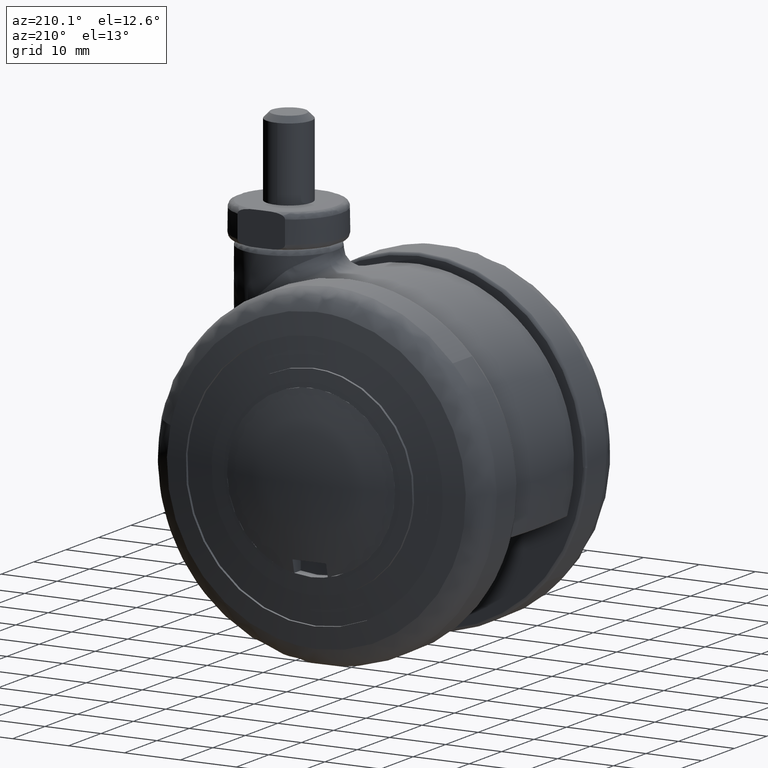
[diagram: clean part render]
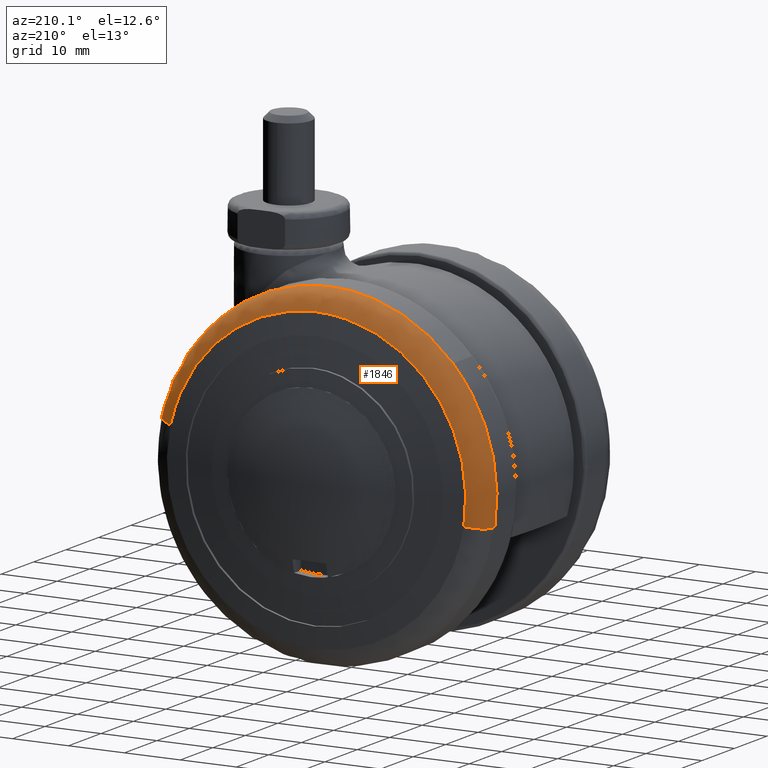
[diagram: same view with one face highlighted and labeled with its STEP entity id]
A machine part, auxiliary view. The second image highlights one B-rep face of the part: STEP entity #1846.
In plain terms, the highlighted face is a freeform B-spline surface patch.
Its self-contained STEP definition (entity closure, byte-faithful):
#802=CARTESIAN_POINT('',(29.273079754005469,16.918165000346921,6.564053756302946));
#803=VERTEX_POINT('',#802);
#821=CARTESIAN_POINT('',(0.0,16.918165000004851,30.000000000000011));
#822=VERTEX_POINT('',#821);
#823=CARTESIAN_POINT('',(0.0,16.918165000004851,30.000000000000011));
#824=CARTESIAN_POINT('',(24.017916571073211,16.918165000004851,30.000000000000004));
#825=CARTESIAN_POINT('',(29.273079754005469,16.918165000346914,6.564053756302946));
#833=(BOUNDED_CURVE()B_SPLINE_CURVE(2,(#823,#824,#825),.UNSPECIFIED.,.F.,.U.)B_SPLINE_CURVE_WITH_KNOTS((3,3),(0.0,0.212563823276733),.UNSPECIFIED.)CURVE()GEOMETRIC_REPRESENTATION_ITEM()RATIONAL_B_SPLINE_CURVE((1.0,0.750965990388735,0.925416950448711))REPRESENTATION_ITEM(''));
#834=EDGE_CURVE('',#822,#803,#833,.T.);
#836=CARTESIAN_POINT('',(-22.118321371718419,16.918165000004819,20.267704845329199));
#837=VERTEX_POINT('',#836);
#838=CARTESIAN_POINT('',(-22.118321371718459,16.918165000004848,20.267704845329252));
#839=CARTESIAN_POINT('',(-13.200317046367177,16.918165000004844,30.0));
#840=CARTESIAN_POINT('',(0.0,16.918165000004851,30.000000000000011));
#848=(BOUNDED_CURVE()B_SPLINE_CURVE(2,(#838,#839,#840),.UNSPECIFIED.,.F.,.U.)B_SPLINE_CURVE_WITH_KNOTS((3,3),(0.868415199643972,1.0),.UNSPECIFIED.)CURVE()GEOMETRIC_REPRESENTATION_ITEM()RATIONAL_B_SPLINE_CURVE((0.853959782003176,0.845838817107189,1.0))REPRESENTATION_ITEM(''));
#849=EDGE_CURVE('',#837,#822,#848,.T.);
#993=CARTESIAN_POINT('',(-29.600578326231581,16.918165000345059,-4.879114955873533));
#994=VERTEX_POINT('',#993);
#995=CARTESIAN_POINT('',(-29.600578326231574,16.918165000345066,-4.879114955873533));
#996=CARTESIAN_POINT('',(-29.999999999999996,16.918165000004851,-2.455906516138719));
#997=CARTESIAN_POINT('',(-30.0,16.918165000004851,6.215428E-015));
#998=CARTESIAN_POINT('',(-30.000000000000007,16.918165000004848,11.666360875732664));
#999=CARTESIAN_POINT('',(-22.118321371718459,16.918165000004848,20.267704845329252));
#1007=(BOUNDED_CURVE()B_SPLINE_CURVE(2,(#995,#996,#997,#998,#999),.UNSPECIFIED.,.F.,.U.)B_SPLINE_CURVE_WITH_KNOTS((3,2,3),(0.722006108799185,0.750000000000000,0.868415199643972),.UNSPECIFIED.)CURVE()GEOMETRIC_REPRESENTATION_ITEM()RATIONAL_B_SPLINE_CURVE((0.941751131923255,0.967203116396318,1.0,0.861267964079358,0.853959782003176))REPRESENTATION_ITEM(''));
#1008=EDGE_CURVE('',#994,#837,#1007,.T.);
#1758=CARTESIAN_POINT('',(25.820638296203537,20.891415125268129,5.789894989584138));
#1759=CARTESIAN_POINT('',(20.352931046125480,20.891415125268121,30.173703585037668));
#1760=CARTESIAN_POINT('',(-4.303676399584784,20.891415125268121,26.109511972869988));
#1761=CARTESIAN_POINT('',(-30.413188372454762,20.891415125268121,21.805835573285204));
#1762=CARTESIAN_POINT('',(-26.109511972869988,20.891415125268132,-4.303676399584751));
#1763=CARTESIAN_POINT('',(29.499359611795217,20.453205016049345,6.614793656645838));
#1764=CARTESIAN_POINT('',(23.252656467907894,20.453205016049345,34.472615380914696));
#1765=CARTESIAN_POINT('',(-4.916830339659505,20.453205016049353,29.829389736248729));
#1766=CARTESIAN_POINT('',(-34.746220075908234,20.453205016049342,24.912559396589238));
#1767=CARTESIAN_POINT('',(-29.829389736248729,20.453205016049353,-4.916830339659467));
#1768=CARTESIAN_POINT('',(29.265275459664991,16.665339410077557,6.562303759068089));
#1769=CARTESIAN_POINT('',(23.068141331115260,16.665339410077554,34.199067309046512));
#1770=CARTESIAN_POINT('',(-4.877814168584143,16.665339410077546,29.592686719747309));
#1771=CARTESIAN_POINT('',(-34.470500888331458,16.665339410077536,24.714872551163161));
#1772=CARTESIAN_POINT('',(-29.592686719747309,16.665339410077557,-4.877814168584108));
#1780=(BOUNDED_SURFACE()B_SPLINE_SURFACE(2,2,((#1758,#1763,#1768),(#1759,#1764,#1769),(#1760,#1765,#1770),(#1761,#1766,#1771),(#1762,#1767,#1772)),.UNSPECIFIED.,.F.,.F.,.U.)B_SPLINE_SURFACE_WITH_KNOTS((3,2,3),(3,3),(0.0,47.704680777101792,97.397056586582806),(0.0,6.382859761475611),.UNSPECIFIED.)GEOMETRIC_REPRESENTATION_ITEM()RATIONAL_B_SPLINE_SURFACE(((0.896685774421636,0.650859408926916,0.897771728868873),(0.659390377501734,0.478618534602815,0.660188949234820),(0.917320156762497,0.665836876259446,0.918431101010965),(0.648643303365869,0.470817770367122,0.649428859577481),(0.917320156762497,0.665836876259446,0.918431101010965)))REPRESENTATION_ITEM('')SURFACE());
#1781=ORIENTED_EDGE('',*,*,#834,.T.);
#1782=CARTESIAN_POINT('',(26.065071559120351,20.854227348020441,5.844705521983595));
#1783=VERTEX_POINT('',#1782);
#1784=CARTESIAN_POINT('',(26.065071559120341,20.854227348020437,5.844705521983596));
#1785=CARTESIAN_POINT('',(29.273079753451533,20.259240790822744,6.564053756143051));
#1786=CARTESIAN_POINT('',(29.273079754005476,16.918165000346917,6.564053756302946));
#1794=(BOUNDED_CURVE()B_SPLINE_CURVE(2,(#1784,#1785,#1786),.UNSPECIFIED.,.F.,.U.)B_SPLINE_CURVE_WITH_KNOTS((3,3),(-1.705714506235509,-0.290855615064164),.UNSPECIFIED.)CURVE()GEOMETRIC_REPRESENTATION_ITEM()RATIONAL_B_SPLINE_CURVE((0.875374423729128,0.672220056541175,0.876361784525512))REPRESENTATION_ITEM(''));
#1795=EDGE_CURVE('',#1783,#803,#1794,.T.);
#1796=ORIENTED_EDGE('',*,*,#1795,.F.);
#1797=CARTESIAN_POINT('',(0.0,20.854227333449700,26.712329319606411));
#1798=VERTEX_POINT('',#1797);
#1799=CARTESIAN_POINT('',(0.0,20.854227333449700,26.712329319606411));
#1800=CARTESIAN_POINT('',(21.385816566820569,20.854227333449693,26.712329319606411));
#1801=CARTESIAN_POINT('',(26.065071559120348,20.854227348020441,5.844705521983596));
#1809=(BOUNDED_CURVE()B_SPLINE_CURVE(2,(#1799,#1800,#1801),.UNSPECIFIED.,.F.,.U.)B_SPLINE_CURVE_WITH_KNOTS((3,3),(0.0,0.212563823273568),.UNSPECIFIED.)CURVE()GEOMETRIC_REPRESENTATION_ITEM()RATIONAL_B_SPLINE_CURVE((1.0,0.750965990392444,0.925416950443516))REPRESENTATION_ITEM(''));
#1810=EDGE_CURVE('',#1798,#1783,#1809,.T.);
#1811=ORIENTED_EDGE('',*,*,#1810,.F.);
#1812=CARTESIAN_POINT('',(-26.356679879683540,20.854227348631529,-4.344417516797684));
#1813=VERTEX_POINT('',#1812);
#1814=CARTESIAN_POINT('',(-26.356679879683547,20.854227348631522,-4.344417516797684));
#1815=CARTESIAN_POINT('',(-26.712329319606397,20.854227333449703,-2.186766121231665));
#1816=CARTESIAN_POINT('',(-26.712329319606400,20.854227333449700,7.661466E-015));
#1817=CARTESIAN_POINT('',(-26.712329319606397,20.854227333449693,26.712329319606397));
#1818=CARTESIAN_POINT('',(0.0,20.854227333449700,26.712329319606411));
#1826=(BOUNDED_CURVE()B_SPLINE_CURVE(2,(#1814,#1815,#1816,#1817,#1818),.UNSPECIFIED.,.F.,.U.)B_SPLINE_CURVE_WITH_KNOTS((3,2,3),(0.722006108799314,0.750000000000000,1.0),.UNSPECIFIED.)CURVE()GEOMETRIC_REPRESENTATION_ITEM()RATIONAL_B_SPLINE_CURVE((0.941751131923491,0.967203116396471,1.0,0.707106781186548,1.0))REPRESENTATION_ITEM(''));
#1827=EDGE_CURVE('',#1813,#1798,#1826,.T.);
#1828=ORIENTED_EDGE('',*,*,#1827,.F.);
#1829=CARTESIAN_POINT('',(-26.356679879683544,20.854227348631529,-4.344417516797684));
#1830=CARTESIAN_POINT('',(-29.600578325671261,20.259240796647742,-4.879114955753392));
#1831=CARTESIAN_POINT('',(-29.600578326231581,16.918165000345059,-4.879114955873534));
#1839=(BOUNDED_CURVE()B_SPLINE_CURVE(2,(#1829,#1830,#1831),.UNSPECIFIED.,.F.,.U.)B_SPLINE_CURVE_WITH_KNOTS((3,3),(-1.705714508127820,-0.290855615063138),.UNSPECIFIED.)CURVE()GEOMETRIC_REPRESENTATION_ITEM()RATIONAL_B_SPLINE_CURVE((0.895518393405438,0.687689071227196,0.896528474626907))REPRESENTATION_ITEM(''));
#1840=EDGE_CURVE('',#1813,#994,#1839,.T.);
#1841=ORIENTED_EDGE('',*,*,#1840,.T.);
#1842=ORIENTED_EDGE('',*,*,#1008,.T.);
#1843=ORIENTED_EDGE('',*,*,#849,.T.);
#1844=EDGE_LOOP('',(#1781,#1796,#1811,#1828,#1841,#1842,#1843));
#1845=FACE_OUTER_BOUND('',#1844,.T.);
#1846=ADVANCED_FACE('',(#1845),#1780,.T.);